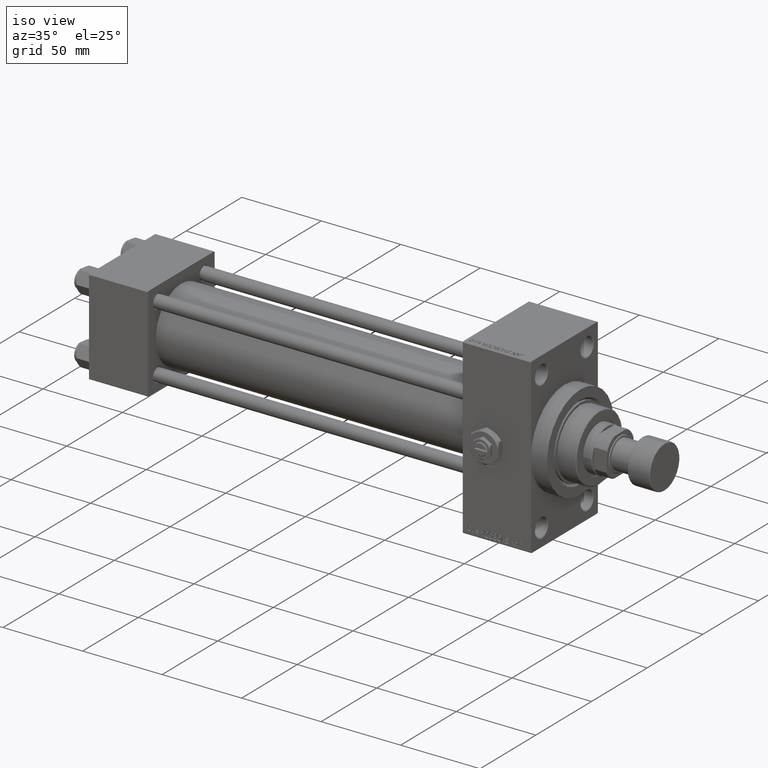
[diagram: clean part render]
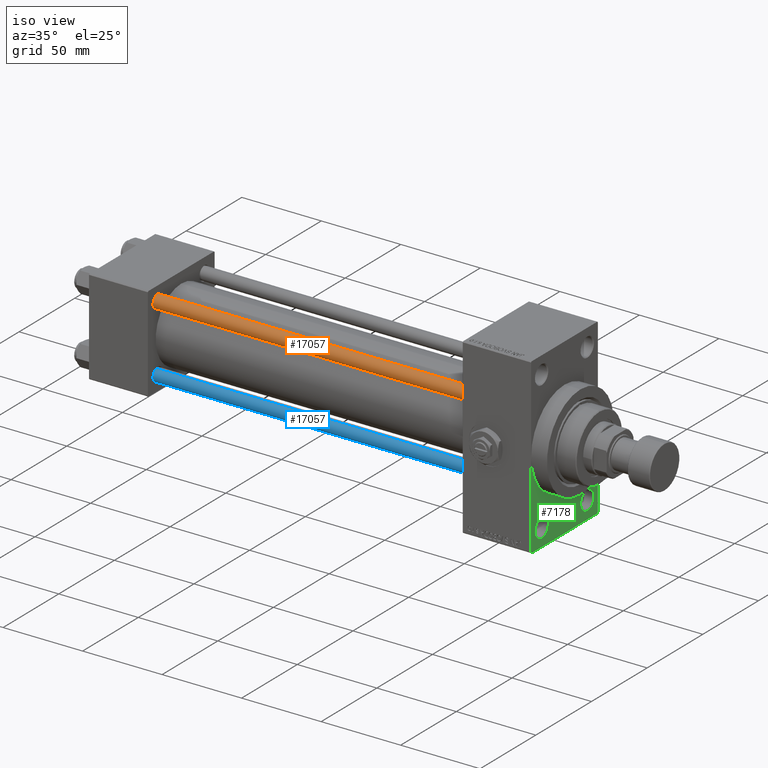
[diagram: same view with three faces highlighted in distinct colors, each labeled with its STEP entity id]
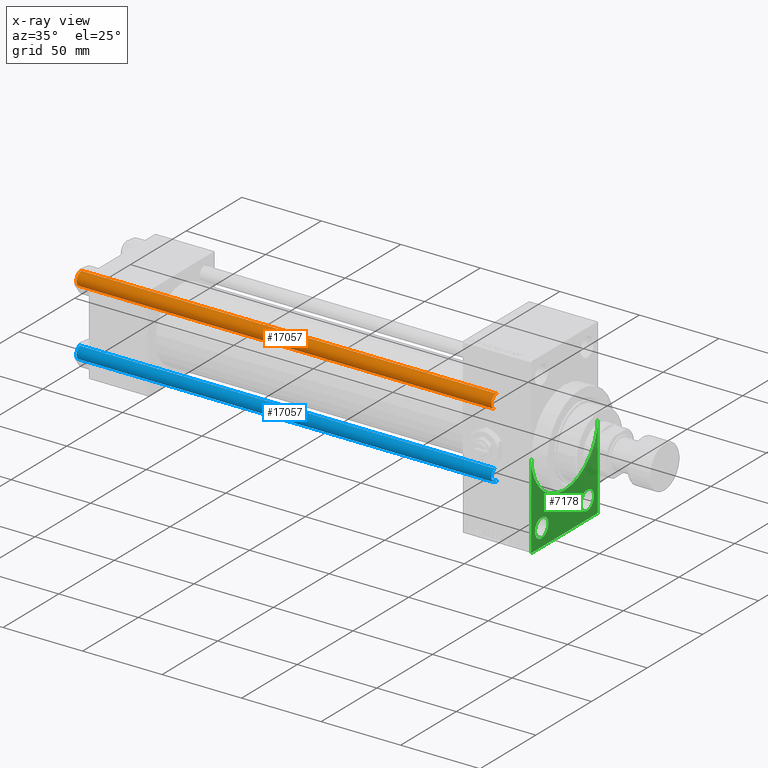
[diagram: x-ray of the same camera — body ghosted, the three highlighted faces saturated]
A machine part, iso view with three faces highlighted in distinct colors.
The next image is the same camera in x-ray (body ghosted, the three faces saturated) — at least one of them is partly hidden behind the body in this view.
Their STEP definitions:

[orange] entity #17057 — the highlighted cylindrical surface (edge-blend (fillet) strip) has radius 4 mm, axis along (1, 0, 0).
#1234 = AXIS2_PLACEMENT_3D ( 'NONE', #9051, #17472, #11799 ) ;
#1756 = VERTEX_POINT ( 'NONE', #28228 ) ;
#3290 = CIRCLE ( 'NONE', #33629, 4.000000000000000000 ) ;
#8521 = DIRECTION ( 'NONE',  ( -0.000000000000000000, -0.000000000000000000, -1.000000000000000000 ) ) ;
#9051 = CARTESIAN_POINT ( 'NONE',  ( 0.000000000000000000, 0.000000000000000000, 262.0000000000000000 ) ) ;
#11799 = DIRECTION ( 'NONE',  ( -1.000000000000000000, 0.000000000000000000, 0.000000000000000000 ) ) ;
#12362 = CARTESIAN_POINT ( 'NONE',  ( 0.000000000000000000, 0.000000000000000000, 261.5000000000000000 ) ) ;
#13956 = VECTOR ( 'NONE', #8521, 1000.000000000000000 ) ;
#14875 = CARTESIAN_POINT ( 'NONE',  ( 4.000000000000000000, 4.898587196589412829E-16, 262.0000000000000000 ) ) ;
#15216 = VERTEX_POINT ( 'NONE', #36912 ) ;
#16610 = DIRECTION ( 'NONE',  ( 0.000000000000000000, 0.000000000000000000, -1.000000000000000000 ) ) ;
#17057 = ADVANCED_FACE ( 'NONE', ( #31814 ), #43346, .T. ) ;
#17082 = ORIENTED_EDGE ( 'NONE', *, *, #18430, .F. ) ;
#17357 = VERTEX_POINT ( 'NONE', #44937 ) ;
#17472 = DIRECTION ( 'NONE',  ( -0.000000000000000000, -0.000000000000000000, -1.000000000000000000 ) ) ;
#17525 = DIRECTION ( 'NONE',  ( -0.000000000000000000, -0.000000000000000000, 1.000000000000000000 ) ) ;
#18154 = ORIENTED_EDGE ( 'NONE', *, *, #36655, .T. ) ;
#18430 = EDGE_CURVE ( 'NONE', #15216, #17357, #46308, .T. ) ;
#21838 = EDGE_CURVE ( 'NONE', #1756, #33432, #29882, .T. ) ;
#23363 = EDGE_LOOP ( 'NONE', ( #18154, #34385, #44404, #17082 ) ) ;
#24057 = DIRECTION ( 'NONE',  ( 1.000000000000000000, 0.000000000000000000, 0.000000000000000000 ) ) ;
#25243 = VECTOR ( 'NONE', #26861, 1000.000000000000000 ) ;
#26861 = DIRECTION ( 'NONE',  ( -0.000000000000000000, -0.000000000000000000, -1.000000000000000000 ) ) ;
#28023 = CARTESIAN_POINT ( 'NONE',  ( -4.000000000000000000, 0.000000000000000000, 262.0000000000000000 ) ) ;
#28228 = CARTESIAN_POINT ( 'NONE',  ( 4.000000000000000000, 4.898587196589412829E-16, 261.5000000000000000 ) ) ;
#29882 = LINE ( 'NONE', #14875, #25243 ) ;
#30571 = CARTESIAN_POINT ( 'NONE',  ( 4.000000000000000000, 4.898587196589412829E-16, 0.5000000000000559552 ) ) ;
#31814 = FACE_OUTER_BOUND ( 'NONE', #23363, .T. ) ;
#32361 = DIRECTION ( 'NONE',  ( 1.000000000000000000, 0.000000000000000000, 0.000000000000000000 ) ) ;
#33432 = VERTEX_POINT ( 'NONE', #30571 ) ;
#33629 = AXIS2_PLACEMENT_3D ( 'NONE', #12362, #16610, #32361 ) ;
#34385 = ORIENTED_EDGE ( 'NONE', *, *, #21838, .T. ) ;
#34579 = EDGE_CURVE ( 'NONE', #33432, #17357, #39959, .T. ) ;
#36655 = EDGE_CURVE ( 'NONE', #15216, #1756, #3290, .T. ) ;
#36737 = AXIS2_PLACEMENT_3D ( 'NONE', #43804, #17525, #24057 ) ;
#36912 = CARTESIAN_POINT ( 'NONE',  ( -4.000000000000000000, 0.000000000000000000, 261.5000000000000000 ) ) ;
#39959 = CIRCLE ( 'NONE', #36737, 4.000000000000000000 ) ;
#43346 = CYLINDRICAL_SURFACE ( 'NONE', #1234, 4.000000000000000000 ) ;
#43804 = CARTESIAN_POINT ( 'NONE',  ( 0.000000000000000000, 0.000000000000000000, 0.5000000000000559552 ) ) ;
#44404 = ORIENTED_EDGE ( 'NONE', *, *, #34579, .T. ) ;
#44937 = CARTESIAN_POINT ( 'NONE',  ( -4.000000000000000000, 0.000000000000000000, 0.5000000000000559552 ) ) ;
#46308 = LINE ( 'NONE', #28023, #13956 ) ;

[blue] entity #17057 — the highlighted cylindrical surface (edge-blend (fillet) strip) has radius 4 mm, axis along (-1, 0, 0).
#1234 = AXIS2_PLACEMENT_3D ( 'NONE', #9051, #17472, #11799 ) ;
#1756 = VERTEX_POINT ( 'NONE', #28228 ) ;
#3290 = CIRCLE ( 'NONE', #33629, 4.000000000000000000 ) ;
#8521 = DIRECTION ( 'NONE',  ( -0.000000000000000000, -0.000000000000000000, -1.000000000000000000 ) ) ;
#9051 = CARTESIAN_POINT ( 'NONE',  ( 0.000000000000000000, 0.000000000000000000, 262.0000000000000000 ) ) ;
#11799 = DIRECTION ( 'NONE',  ( -1.000000000000000000, 0.000000000000000000, 0.000000000000000000 ) ) ;
#12362 = CARTESIAN_POINT ( 'NONE',  ( 0.000000000000000000, 0.000000000000000000, 261.5000000000000000 ) ) ;
#13956 = VECTOR ( 'NONE', #8521, 1000.000000000000000 ) ;
#14875 = CARTESIAN_POINT ( 'NONE',  ( 4.000000000000000000, 4.898587196589412829E-16, 262.0000000000000000 ) ) ;
#15216 = VERTEX_POINT ( 'NONE', #36912 ) ;
#16610 = DIRECTION ( 'NONE',  ( 0.000000000000000000, 0.000000000000000000, -1.000000000000000000 ) ) ;
#17057 = ADVANCED_FACE ( 'NONE', ( #31814 ), #43346, .T. ) ;
#17082 = ORIENTED_EDGE ( 'NONE', *, *, #18430, .F. ) ;
#17357 = VERTEX_POINT ( 'NONE', #44937 ) ;
#17472 = DIRECTION ( 'NONE',  ( -0.000000000000000000, -0.000000000000000000, -1.000000000000000000 ) ) ;
#17525 = DIRECTION ( 'NONE',  ( -0.000000000000000000, -0.000000000000000000, 1.000000000000000000 ) ) ;
#18154 = ORIENTED_EDGE ( 'NONE', *, *, #36655, .T. ) ;
#18430 = EDGE_CURVE ( 'NONE', #15216, #17357, #46308, .T. ) ;
#21838 = EDGE_CURVE ( 'NONE', #1756, #33432, #29882, .T. ) ;
#23363 = EDGE_LOOP ( 'NONE', ( #18154, #34385, #44404, #17082 ) ) ;
#24057 = DIRECTION ( 'NONE',  ( 1.000000000000000000, 0.000000000000000000, 0.000000000000000000 ) ) ;
#25243 = VECTOR ( 'NONE', #26861, 1000.000000000000000 ) ;
#26861 = DIRECTION ( 'NONE',  ( -0.000000000000000000, -0.000000000000000000, -1.000000000000000000 ) ) ;
#28023 = CARTESIAN_POINT ( 'NONE',  ( -4.000000000000000000, 0.000000000000000000, 262.0000000000000000 ) ) ;
#28228 = CARTESIAN_POINT ( 'NONE',  ( 4.000000000000000000, 4.898587196589412829E-16, 261.5000000000000000 ) ) ;
#29882 = LINE ( 'NONE', #14875, #25243 ) ;
#30571 = CARTESIAN_POINT ( 'NONE',  ( 4.000000000000000000, 4.898587196589412829E-16, 0.5000000000000559552 ) ) ;
#31814 = FACE_OUTER_BOUND ( 'NONE', #23363, .T. ) ;
#32361 = DIRECTION ( 'NONE',  ( 1.000000000000000000, 0.000000000000000000, 0.000000000000000000 ) ) ;
#33432 = VERTEX_POINT ( 'NONE', #30571 ) ;
#33629 = AXIS2_PLACEMENT_3D ( 'NONE', #12362, #16610, #32361 ) ;
#34385 = ORIENTED_EDGE ( 'NONE', *, *, #21838, .T. ) ;
#34579 = EDGE_CURVE ( 'NONE', #33432, #17357, #39959, .T. ) ;
#36655 = EDGE_CURVE ( 'NONE', #15216, #1756, #3290, .T. ) ;
#36737 = AXIS2_PLACEMENT_3D ( 'NONE', #43804, #17525, #24057 ) ;
#36912 = CARTESIAN_POINT ( 'NONE',  ( -4.000000000000000000, 0.000000000000000000, 261.5000000000000000 ) ) ;
#39959 = CIRCLE ( 'NONE', #36737, 4.000000000000000000 ) ;
#43346 = CYLINDRICAL_SURFACE ( 'NONE', #1234, 4.000000000000000000 ) ;
#43804 = CARTESIAN_POINT ( 'NONE',  ( 0.000000000000000000, 0.000000000000000000, 0.5000000000000559552 ) ) ;
#44404 = ORIENTED_EDGE ( 'NONE', *, *, #34579, .T. ) ;
#44937 = CARTESIAN_POINT ( 'NONE',  ( -4.000000000000000000, 0.000000000000000000, 0.5000000000000559552 ) ) ;
#46308 = LINE ( 'NONE', #28023, #13956 ) ;

[green] entity #7178 — the highlighted planar face has unit normal (-1, 0, 0).
#1098 = DIRECTION ( 'NONE',  ( 1.000000000000000000, 0.000000000000000000, 0.000000000000000000 ) ) ;
#2164 = DIRECTION ( 'NONE',  ( 0.000000000000000000, 0.000000000000000000, -1.000000000000000000 ) ) ;
#2426 = CARTESIAN_POINT ( 'NONE',  ( 278.0000000000000000, -30.00000000000000000, 54.50000000000000000 ) ) ;
#2502 = DIRECTION ( 'NONE',  ( 0.000000000000000000, -1.000000000000000000, -1.156482317317871478E-16 ) ) ;
#2753 = ORIENTED_EDGE ( 'NONE', *, *, #41865, .T. ) ;
#4222 = VERTEX_POINT ( 'NONE', #7567 ) ;
#4267 = DIRECTION ( 'NONE',  ( 0.000000000000000000, 0.000000000000000000, 1.000000000000000000 ) ) ;
#4344 = LINE ( 'NONE', #19603, #16999 ) ;
#5133 = CARTESIAN_POINT ( 'NONE',  ( 278.0000000000000000, 29.49999999999999645, -54.49999999999999289 ) ) ;
#5839 = CARTESIAN_POINT ( 'NONE',  ( 278.0000000000000000, -20.50000000000000000, -43.50000000000000000 ) ) ;
#6491 = CIRCLE ( 'NONE', #25664, 6.000000000000199840 ) ;
#6828 = ORIENTED_EDGE ( 'NONE', *, *, #45119, .F. ) ;
#6914 = DIRECTION ( 'NONE',  ( -1.000000000000000000, 0.000000000000000000, -0.000000000000000000 ) ) ;
#7178 = ADVANCED_FACE ( 'NONE', ( #7439, #33203, #14690 ), #22684, .F. ) ;
#7219 = VECTOR ( 'NONE', #39635, 1000.000000000000000 ) ;
#7439 = FACE_BOUND ( 'NONE', #38475, .T. ) ;
#7567 = CARTESIAN_POINT ( 'NONE',  ( 278.0000000000000000, 29.99999999999999645, -53.99999999999996447 ) ) ;
#8883 = AXIS2_PLACEMENT_3D ( 'NONE', #5839, #44604, #44370 ) ;
#9499 = EDGE_LOOP ( 'NONE', ( #44241, #27391 ) ) ;
#9842 = DIRECTION ( 'NONE',  ( -1.000000000000000000, 0.000000000000000000, -0.000000000000000000 ) ) ;
#9885 = VERTEX_POINT ( 'NONE', #16548 ) ;
#10370 = VECTOR ( 'NONE', #26343, 1000.000000000000000 ) ;
#10395 = VERTEX_POINT ( 'NONE', #11582 ) ;
#10697 = VERTEX_POINT ( 'NONE', #37194 ) ;
#10925 = CARTESIAN_POINT ( 'NONE',  ( 278.0000000000000000, 0.000000000000000000, 0.000000000000000000 ) ) ;
#11116 = EDGE_CURVE ( 'NONE', #46288, #4222, #4344, .T. ) ;
#11582 = CARTESIAN_POINT ( 'NONE',  ( 278.0000000000000000, -20.50000000000000000, -49.50000000000019895 ) ) ;
#14180 = DIRECTION ( 'NONE',  ( -1.000000000000000000, 0.000000000000000000, -0.000000000000000000 ) ) ;
#14468 = CARTESIAN_POINT ( 'NONE',  ( 278.0000000000000000, -30.00000000000000000, -54.00000000000001421 ) ) ;
#14690 = FACE_OUTER_BOUND ( 'NONE', #32539, .T. ) ;
#15267 = CIRCLE ( 'NONE', #8883, 6.000000000000199840 ) ;
#15798 = VERTEX_POINT ( 'NONE', #30765 ) ;
#16111 = VERTEX_POINT ( 'NONE', #21226 ) ;
#16548 = CARTESIAN_POINT ( 'NONE',  ( 278.0000000000000000, 20.50000000000000000, -49.50000000000019895 ) ) ;
#16999 = VECTOR ( 'NONE', #27350, 1000.000000000000000 ) ;
#19603 = CARTESIAN_POINT ( 'NONE',  ( 278.0000000000000000, 29.99999999999999645, -53.99999999999996447 ) ) ;
#19933 = ORIENTED_EDGE ( 'NONE', *, *, #39556, .T. ) ;
#20851 = AXIS2_PLACEMENT_3D ( 'NONE', #10925, #14180, #33947 ) ;
#21000 = ORIENTED_EDGE ( 'NONE', *, *, #47943, .T. ) ;
#21226 = CARTESIAN_POINT ( 'NONE',  ( 278.0000000000000000, -29.50000000000002842, -54.50000000000000000 ) ) ;
#21491 = LINE ( 'NONE', #36763, #35981 ) ;
#21584 = DIRECTION ( 'NONE',  ( 0.000000000000000000, 0.000000000000000000, 1.000000000000000000 ) ) ;
#21925 = VERTEX_POINT ( 'NONE', #36525 ) ;
#22159 = DIRECTION ( 'NONE',  ( 0.000000000000000000, 0.000000000000000000, 1.000000000000000000 ) ) ;
#22380 = VECTOR ( 'NONE', #26934, 1000.000000000000000 ) ;
#22684 = PLANE ( 'NONE',  #20851 ) ;
#23188 = CARTESIAN_POINT ( 'NONE',  ( 278.0000000000000000, 29.99999999999999645, 54.49999999999999289 ) ) ;
#23798 = VERTEX_POINT ( 'NONE', #41503 ) ;
#24093 = AXIS2_PLACEMENT_3D ( 'NONE', #25099, #9842, #21584 ) ;
#24344 = DIRECTION ( 'NONE',  ( 0.000000000000000000, 0.000000000000000000, -1.000000000000000000 ) ) ;
#24550 = ORIENTED_EDGE ( 'NONE', *, *, #25642, .F. ) ;
#25099 = CARTESIAN_POINT ( 'NONE',  ( 278.0000000000000000, 20.50000000000000000, -43.50000000000000000 ) ) ;
#25642 = EDGE_CURVE ( 'NONE', #45020, #21925, #39780, .T. ) ;
#25664 = AXIS2_PLACEMENT_3D ( 'NONE', #48199, #6914, #22159 ) ;
#26343 = DIRECTION ( 'NONE',  ( 0.000000000000000000, 0.000000000000000000, -1.000000000000000000 ) ) ;
#26934 = DIRECTION ( 'NONE',  ( 0.000000000000000000, 0.000000000000000000, -1.000000000000000000 ) ) ;
#27183 = LINE ( 'NONE', #23188, #22380 ) ;
#27350 = DIRECTION ( 'NONE',  ( -0.000000000000000000, 0.7071067811865279218, 0.7071067811865672237 ) ) ;
#27381 = LINE ( 'NONE', #27861, #7219 ) ;
#27391 = ORIENTED_EDGE ( 'NONE', *, *, #48003, .T. ) ;
#27842 = ORIENTED_EDGE ( 'NONE', *, *, #11116, .T. ) ;
#27861 = CARTESIAN_POINT ( 'NONE',  ( 278.0000000000000000, -29.50000000000002842, -54.50000000000000000 ) ) ;
#30765 = CARTESIAN_POINT ( 'NONE',  ( 278.0000000000000000, 20.50000000000000000, -37.49999999999979394 ) ) ;
#31341 = CIRCLE ( 'NONE', #37748, 6.000000000000199840 ) ;
#31690 = ORIENTED_EDGE ( 'NONE', *, *, #31732, .T. ) ;
#31732 = EDGE_CURVE ( 'NONE', #38259, #16111, #27381, .T. ) ;
#32194 = CARTESIAN_POINT ( 'NONE',  ( 278.0000000000000000, 3.673940397442059178E-15, -30.00000000000000000 ) ) ;
#32539 = EDGE_LOOP ( 'NONE', ( #2753, #31690, #43770, #27842, #45226, #24550, #6828 ) ) ;
#33203 = FACE_BOUND ( 'NONE', #9499, .T. ) ;
#33947 = DIRECTION ( 'NONE',  ( -0.000000000000000000, 0.000000000000000000, 1.000000000000000000 ) ) ;
#34021 = EDGE_CURVE ( 'NONE', #21925, #4222, #27183, .T. ) ;
#34995 = AXIS2_PLACEMENT_3D ( 'NONE', #39848, #1098, #24344 ) ;
#35278 = CIRCLE ( 'NONE', #37678, 30.00000000000000000 ) ;
#35981 = VECTOR ( 'NONE', #2502, 1000.000000000000000 ) ;
#36525 = CARTESIAN_POINT ( 'NONE',  ( 278.0000000000000000, 30.00000000000000000, 0.000000000000000000 ) ) ;
#36763 = CARTESIAN_POINT ( 'NONE',  ( 278.0000000000000000, 29.99999999999999645, -54.49999999999999289 ) ) ;
#37194 = CARTESIAN_POINT ( 'NONE',  ( 278.0000000000000000, -30.00000000000000000, 0.000000000000000000 ) ) ;
#37480 = EDGE_CURVE ( 'NONE', #9885, #15798, #6491, .T. ) ;
#37675 = CIRCLE ( 'NONE', #24093, 6.000000000000199840 ) ;
#37678 = AXIS2_PLACEMENT_3D ( 'NONE', #48444, #44205, #2164 ) ;
#37748 = AXIS2_PLACEMENT_3D ( 'NONE', #46290, #38540, #4267 ) ;
#38259 = VERTEX_POINT ( 'NONE', #14468 ) ;
#38363 = LINE ( 'NONE', #2426, #10370 ) ;
#38475 = EDGE_LOOP ( 'NONE', ( #21000, #19933 ) ) ;
#38540 = DIRECTION ( 'NONE',  ( -1.000000000000000000, 0.000000000000000000, -0.000000000000000000 ) ) ;
#39556 = EDGE_CURVE ( 'NONE', #23798, #10395, #31341, .T. ) ;
#39635 = DIRECTION ( 'NONE',  ( 0.000000000000000000, 0.7071067811865352493, -0.7071067811865597852 ) ) ;
#39780 = CIRCLE ( 'NONE', #34995, 30.00000000000000000 ) ;
#39848 = CARTESIAN_POINT ( 'NONE',  ( 278.0000000000000000, 0.000000000000000000, 0.000000000000000000 ) ) ;
#41503 = CARTESIAN_POINT ( 'NONE',  ( 278.0000000000000000, -20.50000000000000000, -37.49999999999979394 ) ) ;
#41865 = EDGE_CURVE ( 'NONE', #10697, #38259, #38363, .T. ) ;
#43201 = EDGE_CURVE ( 'NONE', #46288, #16111, #21491, .T. ) ;
#43770 = ORIENTED_EDGE ( 'NONE', *, *, #43201, .F. ) ;
#44205 = DIRECTION ( 'NONE',  ( 1.000000000000000000, 0.000000000000000000, 0.000000000000000000 ) ) ;
#44241 = ORIENTED_EDGE ( 'NONE', *, *, #37480, .T. ) ;
#44370 = DIRECTION ( 'NONE',  ( 0.000000000000000000, 0.000000000000000000, 1.000000000000000000 ) ) ;
#44604 = DIRECTION ( 'NONE',  ( -1.000000000000000000, 0.000000000000000000, -0.000000000000000000 ) ) ;
#45020 = VERTEX_POINT ( 'NONE', #32194 ) ;
#45119 = EDGE_CURVE ( 'NONE', #10697, #45020, #35278, .T. ) ;
#45226 = ORIENTED_EDGE ( 'NONE', *, *, #34021, .F. ) ;
#46288 = VERTEX_POINT ( 'NONE', #5133 ) ;
#46290 = CARTESIAN_POINT ( 'NONE',  ( 278.0000000000000000, -20.50000000000000000, -43.50000000000000000 ) ) ;
#47943 = EDGE_CURVE ( 'NONE', #10395, #23798, #15267, .T. ) ;
#48003 = EDGE_CURVE ( 'NONE', #15798, #9885, #37675, .T. ) ;
#48199 = CARTESIAN_POINT ( 'NONE',  ( 278.0000000000000000, 20.50000000000000000, -43.50000000000000000 ) ) ;
#48444 = CARTESIAN_POINT ( 'NONE',  ( 278.0000000000000000, 0.000000000000000000, 0.000000000000000000 ) ) ;